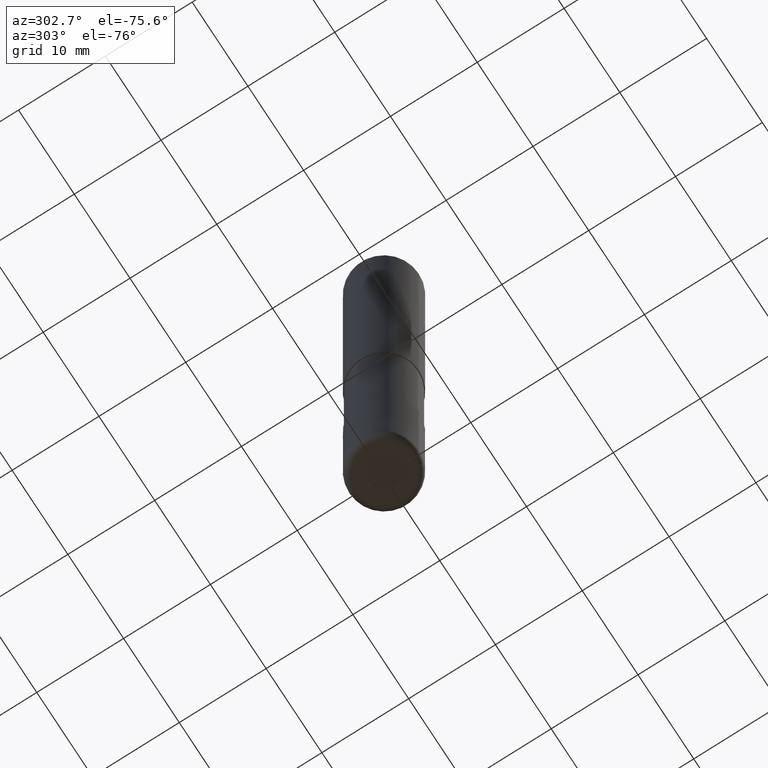
[diagram: clean part render]
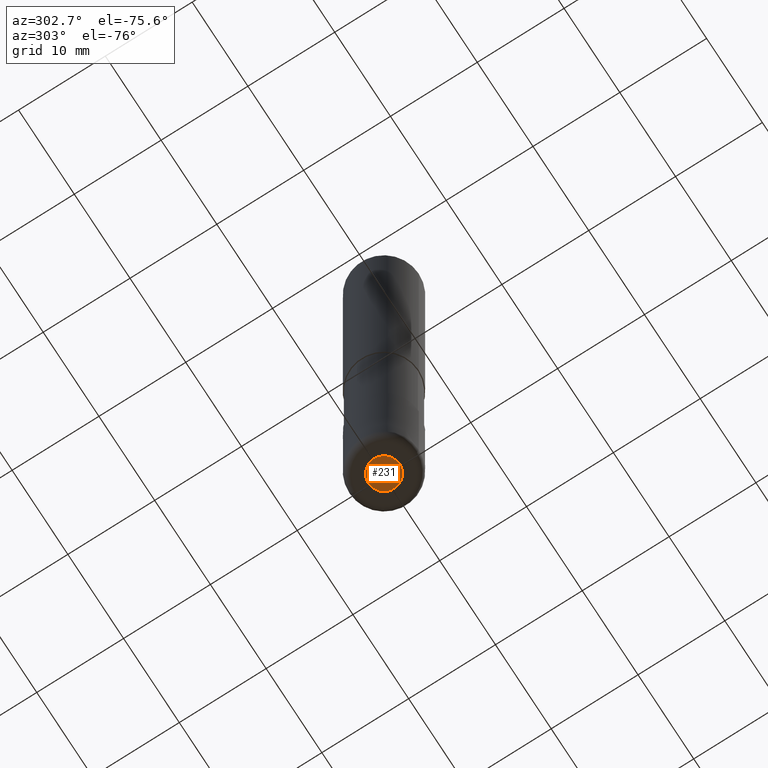
[diagram: same view with one face highlighted and labeled with its STEP entity id]
A machine part, auxiliary view. The second image highlights one B-rep face of the part: STEP entity #231.
In plain terms, the highlighted planar face has unit normal (0, 0, -1).
Its self-contained STEP definition (entity closure, byte-faithful):
#123=VERTEX_POINT('',#311);
#197=EDGE_CURVE('',#123,#211,#394,.T.);
#211=VERTEX_POINT('',#409);
#231=ADVANCED_FACE('',(#432),#433,.T.);
#249=EDGE_CURVE('',#211,#123,#458,.T.);
#311=CARTESIAN_POINT('',(2.20429143688028E-016,-1.8,-69.9));
#394=CIRCLE('',#618,1.8);
#409=CARTESIAN_POINT('',(0.0,1.8,-69.9));
#432=FACE_OUTER_BOUND('',#665,.T.);
#433=PLANE('',#666);
#458=CIRCLE('',#692,1.8);
#618=AXIS2_PLACEMENT_3D('',#860,#861,#862);
#665=EDGE_LOOP('',(#913,#914));
#666=AXIS2_PLACEMENT_3D('',#915,#916,#917);
#692=AXIS2_PLACEMENT_3D('',#950,#951,#952);
#860=CARTESIAN_POINT('',(0.0,0.0,-69.9));
#861=DIRECTION('',(0.0,0.0,-1.0));
#862=DIRECTION('',(0.0,1.0,0.0));
#913=ORIENTED_EDGE('',*,*,#249,.T.);
#914=ORIENTED_EDGE('',*,*,#197,.T.);
#915=CARTESIAN_POINT('',(0.0,0.9,-69.9));
#916=DIRECTION('',(0.0,0.0,-1.0));
#917=DIRECTION('',(0.0,1.0,0.0));
#950=CARTESIAN_POINT('',(0.0,0.0,-69.9));
#951=DIRECTION('',(0.0,0.0,-1.0));
#952=DIRECTION('',(0.0,1.0,0.0));